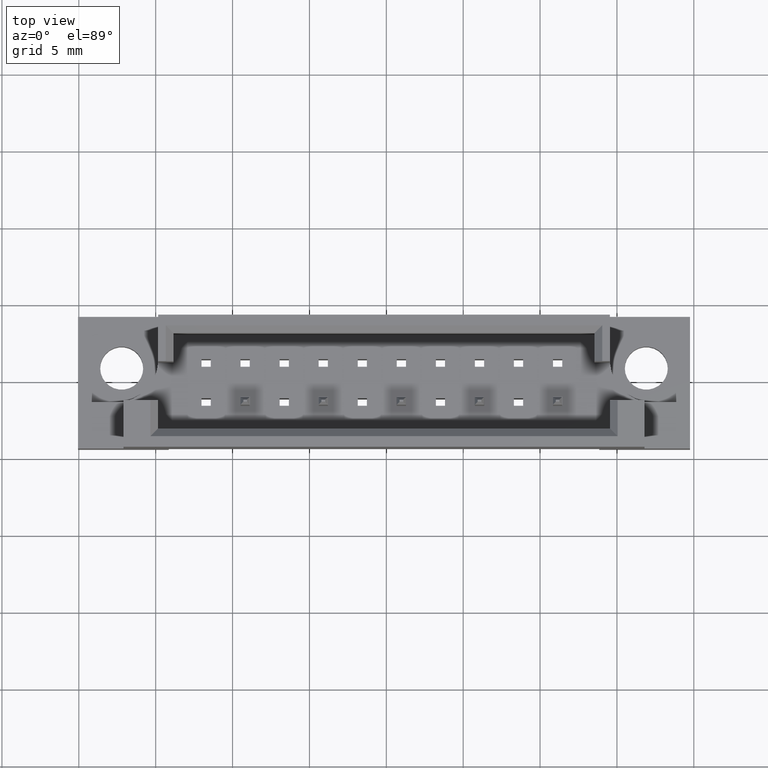
[diagram: clean part render]
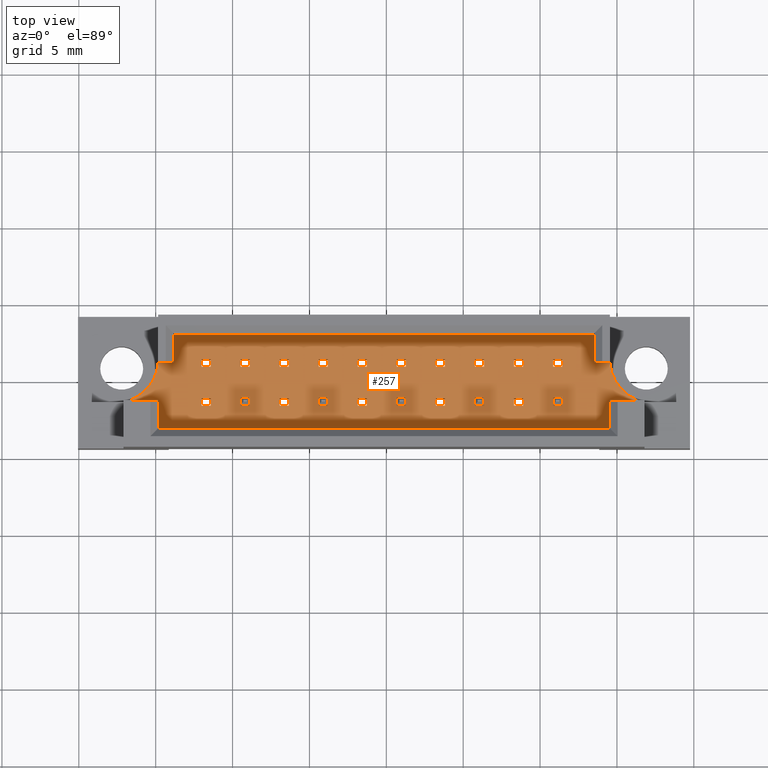
[diagram: same view with one face highlighted and labeled with its STEP entity id]
A machine part, top view. The second image highlights one B-rep face of the part: STEP entity #257.
In plain terms, the highlighted planar face has unit normal (0, 0, 1).
Its self-contained STEP definition (entity closure, byte-faithful):
#2 = CARTESIAN_POINT ( 'NONE',  ( 6.510000000000001563, 1.520000000000001794, 5.199999999999999289 ) ) ;
#3 = ORIENTED_EDGE ( 'NONE', *, *, #2495, .T. ) ;
#14 = VERTEX_POINT ( 'NONE', #395 ) ;
#21 = DIRECTION ( 'NONE',  ( -1.000000000000000000, -1.106434057711472506E-32, 0.0000000000000000000 ) ) ;
#27 = EDGE_CURVE ( 'NONE', #364, #4925, #1938, .T. ) ;
#31 = ORIENTED_EDGE ( 'NONE', *, *, #1352, .T. ) ;
#32 = ORIENTED_EDGE ( 'NONE', *, *, #3899, .T. ) ;
#36 = VERTEX_POINT ( 'NONE', #720 ) ;
#38 = VERTEX_POINT ( 'NONE', #690 ) ;
#42 = VERTEX_POINT ( 'NONE', #767 ) ;
#56 = CARTESIAN_POINT ( 'NONE',  ( -11.27000000000000135, -1.020000000000001128, 5.199999999999999289 ) ) ;
#63 = CARTESIAN_POINT ( 'NONE',  ( 3.970000000000001972, 1.520000000000001794, 5.199999999999999289 ) ) ;
#67 = EDGE_LOOP ( 'NONE', ( #130, #338, #3480, #1822 ) ) ;
#76 = VECTOR ( 'NONE', #3978, 1000.000000000000000 ) ;
#87 = CARTESIAN_POINT ( 'NONE',  ( -11.27000000000000135, 1.520000000000001794, 5.199999999999999289 ) ) ;
#88 = CARTESIAN_POINT ( 'NONE',  ( -11.87000000000000455, 1.520000000000001794, 5.199999999999999289 ) ) ;
#102 = LINE ( 'NONE', #1637, #4067 ) ;
#103 = EDGE_CURVE ( 'NONE', #771, #1003, #2709, .T. ) ;
#109 = CARTESIAN_POINT ( 'NONE',  ( 10.98999999999999844, -1.020000000000001128, 5.199999999999999289 ) ) ;
#110 = CARTESIAN_POINT ( 'NONE',  ( -13.68999999999999417, 1.270000000000029772, 5.199999999999999289 ) ) ;
#111 = ORIENTED_EDGE ( 'NONE', *, *, #885, .T. ) ;
#112 = EDGE_CURVE ( 'NONE', #711, #4656, #1880, .T. ) ;
#122 = CARTESIAN_POINT ( 'NONE',  ( -8.730000000000000426, -1.520000000000001350, 5.199999999999999289 ) ) ;
#128 = ORIENTED_EDGE ( 'NONE', *, *, #3584, .T. ) ;
#129 = EDGE_CURVE ( 'NONE', #2297, #4876, #3010, .T. ) ;
#130 = ORIENTED_EDGE ( 'NONE', *, *, #3915, .T. ) ;
#133 = CARTESIAN_POINT ( 'NONE',  ( -4.250000000000000888, 1.520000000000001794, 5.199999999999999289 ) ) ;
#140 = DIRECTION ( 'NONE',  ( -7.906912673692520484E-33, -1.000000000000000000, 0.0000000000000000000 ) ) ;
#148 = CARTESIAN_POINT ( 'NONE',  ( -11.87000000000000455, -1.520000000000000906, 5.199999999999999289 ) ) ;
#151 = EDGE_CURVE ( 'NONE', #1671, #810, #2469, .T. ) ;
#164 = CARTESIAN_POINT ( 'NONE',  ( -11.87000000000000455, 1.020000000000002016, 5.199999999999999289 ) ) ;
#168 = LINE ( 'NONE', #3944, #578 ) ;
#172 = DIRECTION ( 'NONE',  ( -7.906912673692520484E-33, -1.000000000000000000, 0.0000000000000000000 ) ) ;
#176 = CARTESIAN_POINT ( 'NONE',  ( 3.970000000000001972, 1.020000000000001572, 5.199999999999999289 ) ) ;
#198 = VECTOR ( 'NONE', #1576, 1000.000000000000000 ) ;
#216 = CARTESIAN_POINT ( 'NONE',  ( 6.510000000000001563, -1.520000000000001350, 5.199999999999999289 ) ) ;
#219 = CARTESIAN_POINT ( 'NONE',  ( 1.430000000000001270, 1.020000000000001572, 5.199999999999999289 ) ) ;
#222 = VECTOR ( 'NONE', #2277, 1000.000000000000000 ) ;
#225 = CARTESIAN_POINT ( 'NONE',  ( 17.48233981823222294, 1.476974248434020032, 5.200000000000000178 ) ) ;
#228 = DIRECTION ( 'NONE',  ( 1.000000000000000000, 0.0000000000000000000, -0.0000000000000000000 ) ) ;
#250 = CARTESIAN_POINT ( 'NONE',  ( -8.730000000000000426, -1.520000000000000906, 5.199999999999999289 ) ) ;
#251 = CARTESIAN_POINT ( 'NONE',  ( -9.330000000000003624, -1.520000000000000906, 5.199999999999999289 ) ) ;
#254 = CARTESIAN_POINT ( 'NONE',  ( 3.369999999999998774, -1.520000000000000906, 5.199999999999999289 ) ) ;
#257 = ADVANCED_FACE ( 'NONE', ( #622, #1789, #2970, #4499, #698, #4835, #1862, #4443, #1835, #1351, #2942, #2894, #981, #1055, #2917, #3663, #4466, #2576, #2196, #2597, #1810 ), #4120, .T. ) ;
#260 = LINE ( 'NONE', #1797, #2402 ) ;
#266 = EDGE_CURVE ( 'NONE', #2948, #4915, #3364, .T. ) ;
#271 = CARTESIAN_POINT ( 'NONE',  ( 0.8299999999999982947, 1.020000000000002016, 5.199999999999999289 ) ) ;
#280 = CARTESIAN_POINT ( 'NONE',  ( 6.510000000000001563, -1.020000000000001128, 5.199999999999999289 ) ) ;
#297 = CARTESIAN_POINT ( 'NONE',  ( 3.369999999999997886, 1.520000000000001794, 5.199999999999999289 ) ) ;
#300 = VECTOR ( 'NONE', #682, 1000.000000000000000 ) ;
#301 = VECTOR ( 'NONE', #770, 1000.000000000000000 ) ;
#310 = ORIENTED_EDGE ( 'NONE', *, *, #4763, .T. ) ;
#313 = CARTESIAN_POINT ( 'NONE',  ( -4.250000000000000000, 1.520000000000001794, 5.199999999999999289 ) ) ;
#333 = DIRECTION ( 'NONE',  ( -7.906912673692520484E-33, -1.000000000000000000, 0.0000000000000000000 ) ) ;
#337 = EDGE_CURVE ( 'NONE', #3862, #364, #3150, .T. ) ;
#338 = ORIENTED_EDGE ( 'NONE', *, *, #1739, .T. ) ;
#360 = VECTOR ( 'NONE', #4218, 1000.000000000000000 ) ;
#363 = LINE ( 'NONE', #2687, #301 ) ;
#364 = VERTEX_POINT ( 'NONE', #1226 ) ;
#368 = LINE ( 'NONE', #1227, #1679 ) ;
#371 = ORIENTED_EDGE ( 'NONE', *, *, #3675, .T. ) ;
#376 = DIRECTION ( 'NONE',  ( -1.000000000000000000, -1.106434057711472506E-32, 0.0000000000000000000 ) ) ;
#386 = VECTOR ( 'NONE', #2500, 1000.000000000000000 ) ;
#390 = CARTESIAN_POINT ( 'NONE',  ( 8.449999999999997513, -1.520000000000000906, 5.199999999999999289 ) ) ;
#392 = LINE ( 'NONE', #822, #4651 ) ;
#395 = CARTESIAN_POINT ( 'NONE',  ( 11.59000000000000163, -1.020000000000001128, 5.199999999999999289 ) ) ;
#399 = DIRECTION ( 'NONE',  ( 1.581382534738504097E-32, 1.000000000000000000, -0.0000000000000000000 ) ) ;
#407 = CARTESIAN_POINT ( 'NONE',  ( 5.909999999999998366, 1.020000000000002016, 5.199999999999999289 ) ) ;
#414 = ORIENTED_EDGE ( 'NONE', *, *, #4757, .T. ) ;
#422 = CARTESIAN_POINT ( 'NONE',  ( -14.68999999999999950, -1.270000000000031548, 5.199999999999999289 ) ) ;
#431 = DIRECTION ( 'NONE',  ( 7.906912673692520484E-33, 1.000000000000000000, -0.0000000000000000000 ) ) ;
#442 = EDGE_CURVE ( 'NONE', #994, #4185, #1735, .T. ) ;
#452 = VECTOR ( 'NONE', #1911, 1000.000000000000000 ) ;
#475 = CARTESIAN_POINT ( 'NONE',  ( -11.87000000000000455, 1.020000000000002016, 5.199999999999999289 ) ) ;
#485 = EDGE_CURVE ( 'NONE', #1058, #1671, #1246, .T. ) ;
#490 = EDGE_CURVE ( 'NONE', #1331, #2098, #4019, .T. ) ;
#493 = ORIENTED_EDGE ( 'NONE', *, *, #4689, .T. ) ;
#498 = CARTESIAN_POINT ( 'NONE',  ( -13.68999999999999417, 1.270000000000029772, 5.199999999999999289 ) ) ;
#513 = CARTESIAN_POINT ( 'NONE',  ( -16.94000000000001194, -1.270000000000031326, 5.199999999999998401 ) ) ;
#514 = CARTESIAN_POINT ( 'NONE',  ( -9.330000000000003624, 1.020000000000002016, 5.199999999999999289 ) ) ;
#519 = LINE ( 'NONE', #2036, #4354 ) ;
#522 = LINE ( 'NONE', #148, #3115 ) ;
#540 = VECTOR ( 'NONE', #376, 1000.000000000000000 ) ;
#541 = VECTOR ( 'NONE', #3242, 1000.000000000000000 ) ;
#546 = DIRECTION ( 'NONE',  ( -1.000000000000000000, -8.298255432836044823E-33, 0.0000000000000000000 ) ) ;
#552 = CARTESIAN_POINT ( 'NONE',  ( -8.730000000000000426, 1.020000000000001572, 5.199999999999999289 ) ) ;
#556 = VECTOR ( 'NONE', #4025, 1000.000000000000000 ) ;
#578 = VECTOR ( 'NONE', #2441, 1000.000000000000000 ) ;
#579 = VECTOR ( 'NONE', #611, 1000.000000000000000 ) ;
#583 = VERTEX_POINT ( 'NONE', #3170 ) ;
#590 = DIRECTION ( 'NONE',  ( 1.000000000000000000, 8.298255432836044823E-33, 0.0000000000000000000 ) ) ;
#594 = CARTESIAN_POINT ( 'NONE',  ( -9.330000000000003624, 1.020000000000002016, 5.199999999999999289 ) ) ;
#602 = LINE ( 'NONE', #3674, #2475 ) ;
#611 = DIRECTION ( 'NONE',  ( 1.000000000000000000, 9.637352644315549637E-17, 0.0000000000000000000 ) ) ;
#614 = VECTOR ( 'NONE', #3627, 1000.000000000000000 ) ;
#616 = VECTOR ( 'NONE', #2333, 1000.000000000000000 ) ;
#620 = DIRECTION ( 'NONE',  ( 1.000000000000000000, 8.298255432836044823E-33, 0.0000000000000000000 ) ) ;
#622 = FACE_OUTER_BOUND ( 'NONE', #3564, .T. ) ;
#628 = CARTESIAN_POINT ( 'NONE',  ( -3.649999999999997691, -1.520000000000000906, 5.199999999999999289 ) ) ;
#629 = VERTEX_POINT ( 'NONE', #552 ) ;
#635 = EDGE_CURVE ( 'NONE', #3297, #3213, #959, .T. ) ;
#640 = VERTEX_POINT ( 'NONE', #702 ) ;
#645 = CARTESIAN_POINT ( 'NONE',  ( -11.87000000000000455, -1.020000000000001128, 5.199999999999999289 ) ) ;
#646 = DIRECTION ( 'NONE',  ( 1.000000000000000000, 8.298255432836044823E-33, 0.0000000000000000000 ) ) ;
#668 = EDGE_CURVE ( 'NONE', #4937, #1331, #4471, .T. ) ;
#679 = EDGE_CURVE ( 'NONE', #3797, #2026, #4817, .T. ) ;
#682 = DIRECTION ( 'NONE',  ( -0.0000000000000000000, -1.000000000000000000, -0.0000000000000000000 ) ) ;
#690 = CARTESIAN_POINT ( 'NONE',  ( 3.970000000000001972, -1.020000000000001128, 5.199999999999999289 ) ) ;
#694 = CARTESIAN_POINT ( 'NONE',  ( 5.909999999999998366, 1.020000000000002016, 5.199999999999999289 ) ) ;
#695 = VECTOR ( 'NONE', #172, 1000.000000000000000 ) ;
#697 = LINE ( 'NONE', #2239, #1179 ) ;
#698 = FACE_BOUND ( 'NONE', #2440, .T. ) ;
#702 = CARTESIAN_POINT ( 'NONE',  ( -1.109999999999999876, -1.520000000000001350, 5.199999999999999289 ) ) ;
#711 = VERTEX_POINT ( 'NONE', #2920 ) ;
#716 = LINE ( 'NONE', #390, #949 ) ;
#720 = CARTESIAN_POINT ( 'NONE',  ( -11.87000000000000455, -1.520000000000000906, 5.199999999999999289 ) ) ;
#726 = VERTEX_POINT ( 'NONE', #3345 ) ;
#727 = LINE ( 'NONE', #772, #360 ) ;
#732 = CARTESIAN_POINT ( 'NONE',  ( 0.8299999999999982947, 1.520000000000001794, 5.199999999999999289 ) ) ;
#737 = EDGE_LOOP ( 'NONE', ( #3306, #4230, #3346, #3108 ) ) ;
#750 = CARTESIAN_POINT ( 'NONE',  ( -8.730000000000000426, 1.520000000000001794, 5.199999999999999289 ) ) ;
#753 = ORIENTED_EDGE ( 'NONE', *, *, #129, .T. ) ;
#755 = LINE ( 'NONE', #3817, #540 ) ;
#764 = VERTEX_POINT ( 'NONE', #4284 ) ;
#765 = CARTESIAN_POINT ( 'NONE',  ( -3.649999999999997691, 1.020000000000001572, 5.199999999999999289 ) ) ;
#767 = CARTESIAN_POINT ( 'NONE',  ( -11.87000000000000455, 1.520000000000001794, 5.199999999999999289 ) ) ;
#770 = DIRECTION ( 'NONE',  ( -1.000000000000000000, -8.298255432836044823E-33, 0.0000000000000000000 ) ) ;
#771 = VERTEX_POINT ( 'NONE', #4258 ) ;
#772 = CARTESIAN_POINT ( 'NONE',  ( 8.449999999999997513, 1.020000000000002016, 5.199999999999999289 ) ) ;
#774 = DIRECTION ( 'NONE',  ( 7.906912673692520484E-33, 1.000000000000000000, -0.0000000000000000000 ) ) ;
#777 = VERTEX_POINT ( 'NONE', #63 ) ;
#791 = VECTOR ( 'NONE', #3718, 1000.000000000000000 ) ;
#800 = CARTESIAN_POINT ( 'NONE',  ( -6.189999999999998614, 1.020000000000002016, 5.199999999999999289 ) ) ;
#801 = VECTOR ( 'NONE', #3287, 1000.000000000000000 ) ;
#805 = VECTOR ( 'NONE', #3589, 1000.000000000000000 ) ;
#810 = VERTEX_POINT ( 'NONE', #2303 ) ;
#812 = LINE ( 'NONE', #88, #2479 ) ;
#817 = EDGE_LOOP ( 'NONE', ( #2452, #4455, #1482, #4240 ) ) ;
#821 = CARTESIAN_POINT ( 'NONE',  ( -11.27000000000000135, 1.020000000000002016, 5.199999999999999289 ) ) ;
#822 = CARTESIAN_POINT ( 'NONE',  ( 10.98999999999999844, 1.020000000000002016, 5.199999999999999289 ) ) ;
#825 = EDGE_CURVE ( 'NONE', #2506, #14, #1211, .T. ) ;
#828 = LINE ( 'NONE', #1528, #2480 ) ;
#836 = LINE ( 'NONE', #1620, #864 ) ;
#837 = CARTESIAN_POINT ( 'NONE',  ( 10.98999999999999844, -1.020000000000001128, 5.199999999999999289 ) ) ;
#844 = VERTEX_POINT ( 'NONE', #1540 ) ;
#852 = LINE ( 'NONE', #4215, #1504 ) ;
#856 = CARTESIAN_POINT ( 'NONE',  ( 8.449999999999997513, -1.020000000000001128, 5.199999999999999289 ) ) ;
#863 = VERTEX_POINT ( 'NONE', #1278 ) ;
#864 = VECTOR ( 'NONE', #4305, 1000.000000000000000 ) ;
#866 = CARTESIAN_POINT ( 'NONE',  ( 9.050000000000000711, -1.520000000000000906, 5.199999999999999289 ) ) ;
#872 = VECTOR ( 'NONE', #1119, 1000.000000000000000 ) ;
#878 = CIRCLE ( 'NONE', #3686, 2.800000000000000266 ) ;
#882 = DIRECTION ( 'NONE',  ( -7.906912673692520484E-33, -1.000000000000000000, 0.0000000000000000000 ) ) ;
#885 = EDGE_CURVE ( 'NONE', #1107, #3553, #4422, .T. ) ;
#900 = ORIENTED_EDGE ( 'NONE', *, *, #668, .T. ) ;
#902 = DIRECTION ( 'NONE',  ( -7.906912673692520484E-33, -1.000000000000000000, 0.0000000000000000000 ) ) ;
#907 = CARTESIAN_POINT ( 'NONE',  ( -1.710000000000002407, 1.520000000000001794, 5.199999999999999289 ) ) ;
#912 = LINE ( 'NONE', #1303, #2242 ) ;
#932 = ORIENTED_EDGE ( 'NONE', *, *, #4521, .T. ) ;
#934 = DIRECTION ( 'NONE',  ( 1.000000000000000000, 8.298255432836044823E-33, 0.0000000000000000000 ) ) ;
#946 = VECTOR ( 'NONE', #4816, 1000.000000000000000 ) ;
#949 = VECTOR ( 'NONE', #1934, 1000.000000000000000 ) ;
#954 = CARTESIAN_POINT ( 'NONE',  ( 5.909999999999998366, -1.020000000000001128, 5.199999999999999289 ) ) ;
#959 = LINE ( 'NONE', #2502, #556 ) ;
#972 = LINE ( 'NONE', #3986, #2716 ) ;
#981 = FACE_BOUND ( 'NONE', #2925, .T. ) ;
#994 = VERTEX_POINT ( 'NONE', #4376 ) ;
#1002 = EDGE_CURVE ( 'NONE', #1545, #4314, #4771, .T. ) ;
#1003 = VERTEX_POINT ( 'NONE', #1325 ) ;
#1004 = CARTESIAN_POINT ( 'NONE',  ( -1.710000000000002407, -1.020000000000001128, 5.199999999999999289 ) ) ;
#1005 = VECTOR ( 'NONE', #2614, 1000.000000000000000 ) ;
#1009 = DIRECTION ( 'NONE',  ( -7.906912673692520484E-33, -1.000000000000000000, 0.0000000000000000000 ) ) ;
#1020 = EDGE_CURVE ( 'NONE', #4183, #771, #3231, .T. ) ;
#1021 = ORIENTED_EDGE ( 'NONE', *, *, #1932, .T. ) ;
#1025 = DIRECTION ( 'NONE',  ( 1.000000000000000000, 0.0000000000000000000, 0.0000000000000000000 ) ) ;
#1028 = VECTOR ( 'NONE', #1072, 1000.000000000000000 ) ;
#1029 = EDGE_CURVE ( 'NONE', #2219, #640, #912, .T. ) ;
#1043 = EDGE_CURVE ( 'NONE', #1111, #3629, #1281, .T. ) ;
#1048 = DIRECTION ( 'NONE',  ( 1.000000000000000000, 8.298255432836044823E-33, 0.0000000000000000000 ) ) ;
#1053 = EDGE_CURVE ( 'NONE', #1798, #1967, #716, .T. ) ;
#1055 = FACE_BOUND ( 'NONE', #3424, .T. ) ;
#1058 = VERTEX_POINT ( 'NONE', #3060 ) ;
#1061 = CARTESIAN_POINT ( 'NONE',  ( -14.68999999999999950, -3.100000000000135536, 5.199999999999999289 ) ) ;
#1070 = CARTESIAN_POINT ( 'NONE',  ( 11.59000000000000163, 1.020000000000001572, 5.199999999999999289 ) ) ;
#1072 = DIRECTION ( 'NONE',  ( 1.581382534738504097E-32, 1.000000000000000000, -0.0000000000000000000 ) ) ;
#1073 = LINE ( 'NONE', #3013, #4079 ) ;
#1088 = EDGE_CURVE ( 'NONE', #4264, #3113, #2343, .T. ) ;
#1097 = DIRECTION ( 'NONE',  ( -1.000000000000000000, -1.106434057711472506E-32, 0.0000000000000000000 ) ) ;
#1107 = VERTEX_POINT ( 'NONE', #3538 ) ;
#1111 = VERTEX_POINT ( 'NONE', #3863 ) ;
#1119 = DIRECTION ( 'NONE',  ( -1.000000000000000000, -8.298255432836044823E-33, 0.0000000000000000000 ) ) ;
#1132 = VERTEX_POINT ( 'NONE', #1959 ) ;
#1135 = ORIENTED_EDGE ( 'NONE', *, *, #2403, .T. ) ;
#1145 = VERTEX_POINT ( 'NONE', #513 ) ;
#1146 = EDGE_CURVE ( 'NONE', #1967, #2877, #1218, .T. ) ;
#1178 = CARTESIAN_POINT ( 'NONE',  ( 8.449999999999997513, 1.020000000000002016, 5.199999999999999289 ) ) ;
#1179 = VECTOR ( 'NONE', #646, 1000.000000000000000 ) ;
#1180 = ORIENTED_EDGE ( 'NONE', *, *, #2462, .T. ) ;
#1183 = EDGE_CURVE ( 'NONE', #2372, #1798, #3110, .T. ) ;
#1184 = ORIENTED_EDGE ( 'NONE', *, *, #103, .T. ) ;
#1199 = DIRECTION ( 'NONE',  ( -1.000000000000000000, -8.298255432836044823E-33, 0.0000000000000000000 ) ) ;
#1211 = LINE ( 'NONE', #837, #2578 ) ;
#1217 = ORIENTED_EDGE ( 'NONE', *, *, #2965, .T. ) ;
#1218 = LINE ( 'NONE', #2777, #198 ) ;
#1226 = CARTESIAN_POINT ( 'NONE',  ( -4.250000000000001776, 1.020000000000002016, 5.199999999999999289 ) ) ;
#1227 = CARTESIAN_POINT ( 'NONE',  ( -9.330000000000003624, -1.020000000000001128, 5.199999999999999289 ) ) ;
#1244 = VERTEX_POINT ( 'NONE', #594 ) ;
#1246 = LINE ( 'NONE', #3262, #3689 ) ;
#1250 = CARTESIAN_POINT ( 'NONE',  ( 10.98999999999999844, 1.020000000000002016, 5.199999999999999289 ) ) ;
#1278 = CARTESIAN_POINT ( 'NONE',  ( -6.790000000000002700, 1.020000000000002016, 5.199999999999999289 ) ) ;
#1281 = LINE ( 'NONE', #2825, #76 ) ;
#1282 = DIRECTION ( 'NONE',  ( 1.000000000000000000, 8.298255432836044823E-33, 0.0000000000000000000 ) ) ;
#1303 = CARTESIAN_POINT ( 'NONE',  ( -1.109999999999999210, -1.520000000000000906, 5.199999999999999289 ) ) ;
#1308 = VECTOR ( 'NONE', #4633, 1000.000000000000000 ) ;
#1310 = VECTOR ( 'NONE', #3328, 1000.000000000000000 ) ;
#1312 = VERTEX_POINT ( 'NONE', #2245 ) ;
#1313 = DIRECTION ( 'NONE',  ( 1.000000000000000000, 8.298255432836044823E-33, 0.0000000000000000000 ) ) ;
#1315 = CARTESIAN_POINT ( 'NONE',  ( 10.98999999999999844, -1.520000000000000906, 5.199999999999999289 ) ) ;
#1325 = CARTESIAN_POINT ( 'NONE',  ( -6.189999999999998614, 1.020000000000001572, 5.199999999999999289 ) ) ;
#1326 = VECTOR ( 'NONE', #590, 1000.000000000000000 ) ;
#1331 = VERTEX_POINT ( 'NONE', #4910 ) ;
#1351 = FACE_BOUND ( 'NONE', #1902, .T. ) ;
#1352 = EDGE_CURVE ( 'NONE', #3629, #2465, #3014, .T. ) ;
#1358 = EDGE_CURVE ( 'NONE', #4314, #2119, #1801, .T. ) ;
#1376 = LINE ( 'NONE', #907, #4316 ) ;
#1382 = ORIENTED_EDGE ( 'NONE', *, *, #4741, .T. ) ;
#1385 = VERTEX_POINT ( 'NONE', #216 ) ;
#1404 = ORIENTED_EDGE ( 'NONE', *, *, #2108, .T. ) ;
#1420 = VECTOR ( 'NONE', #431, 1000.000000000000000 ) ;
#1424 = LINE ( 'NONE', #271, #2958 ) ;
#1435 = EDGE_CURVE ( 'NONE', #38, #4937, #3035, .T. ) ;
#1436 = VECTOR ( 'NONE', #4647, 1000.000000000000000 ) ;
#1446 = CARTESIAN_POINT ( 'NONE',  ( -6.790000000000001812, -1.020000000000001128, 5.199999999999999289 ) ) ;
#1462 = VERTEX_POINT ( 'NONE', #3112 ) ;
#1463 = ORIENTED_EDGE ( 'NONE', *, *, #2664, .T. ) ;
#1476 = EDGE_LOOP ( 'NONE', ( #310, #4131, #31, #2437 ) ) ;
#1482 = ORIENTED_EDGE ( 'NONE', *, *, #4037, .T. ) ;
#1492 = CARTESIAN_POINT ( 'NONE',  ( -9.330000000000003624, -1.520000000000000906, 5.199999999999999289 ) ) ;
#1504 = VECTOR ( 'NONE', #399, 1000.000000000000000 ) ;
#1517 = VERTEX_POINT ( 'NONE', #4646 ) ;
#1524 = EDGE_CURVE ( 'NONE', #2465, #2975, #727, .T. ) ;
#1528 = CARTESIAN_POINT ( 'NONE',  ( 8.449999999999997513, 1.520000000000001794, 5.199999999999999289 ) ) ;
#1534 = CARTESIAN_POINT ( 'NONE',  ( -13.68999999999999417, 1.270000000000029772, 5.199999999999999289 ) ) ;
#1538 = ORIENTED_EDGE ( 'NONE', *, *, #4532, .T. ) ;
#1540 = CARTESIAN_POINT ( 'NONE',  ( 14.68999999999999950, -1.270000000000031548, 5.199999999999999289 ) ) ;
#1545 = VERTEX_POINT ( 'NONE', #1558 ) ;
#1550 = CARTESIAN_POINT ( 'NONE',  ( -3.649999999999997691, -1.020000000000001128, 5.199999999999999289 ) ) ;
#1554 = EDGE_CURVE ( 'NONE', #1145, #3320, #3876, .T. ) ;
#1558 = CARTESIAN_POINT ( 'NONE',  ( 5.909999999999998366, 1.520000000000001794, 5.199999999999999289 ) ) ;
#1564 = EDGE_LOOP ( 'NONE', ( #4013, #4288, #3105, #4362 ) ) ;
#1574 = EDGE_LOOP ( 'NONE', ( #2683, #1184, #2337, #1404 ) ) ;
#1576 = DIRECTION ( 'NONE',  ( 7.906912673692520484E-33, 1.000000000000000000, -0.0000000000000000000 ) ) ;
#1589 = CARTESIAN_POINT ( 'NONE',  ( 10.98999999999999844, -1.020000000000001128, 5.199999999999999289 ) ) ;
#1606 = ORIENTED_EDGE ( 'NONE', *, *, #3662, .T. ) ;
#1620 = CARTESIAN_POINT ( 'NONE',  ( -6.790000000000001812, -1.020000000000001128, 5.199999999999999289 ) ) ;
#1636 = VECTOR ( 'NONE', #1048, 1000.000000000000000 ) ;
#1637 = CARTESIAN_POINT ( 'NONE',  ( 10.98999999999999844, 1.520000000000001794, 5.199999999999999289 ) ) ;
#1642 = LINE ( 'NONE', #1250, #616 ) ;
#1649 = VERTEX_POINT ( 'NONE', #3240 ) ;
#1671 = VERTEX_POINT ( 'NONE', #2766 ) ;
#1679 = VECTOR ( 'NONE', #4219, 1000.000000000000000 ) ;
#1685 = EDGE_CURVE ( 'NONE', #2899, #3506, #3988, .T. ) ;
#1687 = VERTEX_POINT ( 'NONE', #4301 ) ;
#1700 = VERTEX_POINT ( 'NONE', #122 ) ;
#1703 = DIRECTION ( 'NONE',  ( 1.581382534738504097E-32, 1.000000000000000000, -0.0000000000000000000 ) ) ;
#1720 = DIRECTION ( 'NONE',  ( -0.0000000000000000000, -1.000000000000000000, -0.0000000000000000000 ) ) ;
#1722 = EDGE_CURVE ( 'NONE', #3506, #36, #522, .T. ) ;
#1724 = DIRECTION ( 'NONE',  ( 1.581382534738504097E-32, 1.000000000000000000, -0.0000000000000000000 ) ) ;
#1725 = DIRECTION ( 'NONE',  ( -7.906912673692520484E-33, -1.000000000000000000, 0.0000000000000000000 ) ) ;
#1726 = DIRECTION ( 'NONE',  ( 1.581382534738504097E-32, 1.000000000000000000, -0.0000000000000000000 ) ) ;
#1728 = ORIENTED_EDGE ( 'NONE', *, *, #490, .T. ) ;
#1735 = LINE ( 'NONE', #954, #2417 ) ;
#1737 = DIRECTION ( 'NONE',  ( -7.906912673692520484E-33, -1.000000000000000000, 0.0000000000000000000 ) ) ;
#1738 = EDGE_CURVE ( 'NONE', #14, #1312, #3189, .T. ) ;
#1739 = EDGE_CURVE ( 'NONE', #2984, #629, #3924, .T. ) ;
#1745 = EDGE_CURVE ( 'NONE', #1132, #2948, #102, .T. ) ;
#1760 = ORIENTED_EDGE ( 'NONE', *, *, #1088, .T. ) ;
#1764 = AXIS2_PLACEMENT_3D ( 'NONE', #2217, #3369, #228 ) ;
#1774 = CARTESIAN_POINT ( 'NONE',  ( -6.790000000000000924, 1.520000000000001794, 5.199999999999999289 ) ) ;
#1782 = LINE ( 'NONE', #4901, #1636 ) ;
#1788 = DIRECTION ( 'NONE',  ( -7.906912673692520484E-33, -1.000000000000000000, 0.0000000000000000000 ) ) ;
#1789 = FACE_BOUND ( 'NONE', #2959, .T. ) ;
#1791 = DIRECTION ( 'NONE',  ( -1.000000000000000000, -8.298255432836044823E-33, 0.0000000000000000000 ) ) ;
#1794 = EDGE_CURVE ( 'NONE', #3508, #3862, #4138, .T. ) ;
#1797 = CARTESIAN_POINT ( 'NONE',  ( -11.87000000000000455, 1.020000000000002016, 5.199999999999999289 ) ) ;
#1798 = VERTEX_POINT ( 'NONE', #3314 ) ;
#1801 = LINE ( 'NONE', #3651, #4300 ) ;
#1809 = CARTESIAN_POINT ( 'NONE',  ( 8.449999999999997513, -1.020000000000001128, 5.199999999999999289 ) ) ;
#1810 = FACE_BOUND ( 'NONE', #2298, .T. ) ;
#1812 = CARTESIAN_POINT ( 'NONE',  ( 3.369999999999998774, 1.020000000000002016, 5.199999999999999289 ) ) ;
#1822 = ORIENTED_EDGE ( 'NONE', *, *, #3984, .T. ) ;
#1826 = VECTOR ( 'NONE', #1940, 1000.000000000000000 ) ;
#1827 = VECTOR ( 'NONE', #3539, 1000.000000000000000 ) ;
#1835 = FACE_BOUND ( 'NONE', #817, .T. ) ;
#1836 = VECTOR ( 'NONE', #934, 1000.000000000000000 ) ;
#1841 = DIRECTION ( 'NONE',  ( 1.581382534738504097E-32, 1.000000000000000000, -0.0000000000000000000 ) ) ;
#1844 = ORIENTED_EDGE ( 'NONE', *, *, #3163, .T. ) ;
#1858 = CARTESIAN_POINT ( 'NONE',  ( -1.710000000000002629, -1.020000000000001128, 5.199999999999999289 ) ) ;
#1862 = FACE_BOUND ( 'NONE', #737, .T. ) ;
#1873 = EDGE_CURVE ( 'NONE', #3201, #2899, #4041, .T. ) ;
#1880 = LINE ( 'NONE', #4561, #2969 ) ;
#1885 = ORIENTED_EDGE ( 'NONE', *, *, #4195, .T. ) ;
#1892 = VERTEX_POINT ( 'NONE', #1858 ) ;
#1902 = EDGE_LOOP ( 'NONE', ( #4448, #4889, #4577, #493 ) ) ;
#1911 = DIRECTION ( 'NONE',  ( 1.000000000000000000, -9.637352644315549637E-17, -0.0000000000000000000 ) ) ;
#1913 = LINE ( 'NONE', #2398, #4319 ) ;
#1914 = LINE ( 'NONE', #1589, #3190 ) ;
#1916 = VECTOR ( 'NONE', #1791, 1000.000000000000000 ) ;
#1930 = VECTOR ( 'NONE', #333, 1000.000000000000000 ) ;
#1932 = EDGE_CURVE ( 'NONE', #1649, #3327, #2571, .T. ) ;
#1934 = DIRECTION ( 'NONE',  ( -1.000000000000000000, -8.298255432836044823E-33, 0.0000000000000000000 ) ) ;
#1938 = LINE ( 'NONE', #2263, #3135 ) ;
#1940 = DIRECTION ( 'NONE',  ( -1.000000000000000000, 0.0000000000000000000, 0.0000000000000000000 ) ) ;
#1950 = DIRECTION ( 'NONE',  ( 1.000000000000000000, 8.298255432836044823E-33, 0.0000000000000000000 ) ) ;
#1952 = ORIENTED_EDGE ( 'NONE', *, *, #4031, .T. ) ;
#1959 = CARTESIAN_POINT ( 'NONE',  ( 10.99000000000000021, 1.520000000000001794, 5.199999999999999289 ) ) ;
#1960 = CARTESIAN_POINT ( 'NONE',  ( -1.710000000000003073, 1.520000000000001794, 5.199999999999999289 ) ) ;
#1961 = ORIENTED_EDGE ( 'NONE', *, *, #2551, .T. ) ;
#1966 = EDGE_CURVE ( 'NONE', #4405, #3080, #3411, .T. ) ;
#1967 = VERTEX_POINT ( 'NONE', #4564 ) ;
#1991 = DIRECTION ( 'NONE',  ( 1.000000000000000000, 8.298255432836044823E-33, 0.0000000000000000000 ) ) ;
#1996 = CARTESIAN_POINT ( 'NONE',  ( 16.94000000000001194, -1.270000000000035323, 5.199999999999998401 ) ) ;
#2002 = VECTOR ( 'NONE', #1737, 1000.000000000000000 ) ;
#2008 = LINE ( 'NONE', #133, #614 ) ;
#2026 = VERTEX_POINT ( 'NONE', #4165 ) ;
#2029 = ORIENTED_EDGE ( 'NONE', *, *, #1435, .T. ) ;
#2036 = CARTESIAN_POINT ( 'NONE',  ( 3.970000000000001972, 1.020000000000002016, 5.199999999999999289 ) ) ;
#2049 = CARTESIAN_POINT ( 'NONE',  ( 5.909999999999998366, 1.520000000000001794, 5.199999999999999289 ) ) ;
#2050 = EDGE_CURVE ( 'NONE', #3327, #1107, #3116, .T. ) ;
#2054 = EDGE_CURVE ( 'NONE', #1003, #863, #2314, .T. ) ;
#2056 = CARTESIAN_POINT ( 'NONE',  ( -1.710000000000002629, -1.520000000000000906, 5.199999999999999289 ) ) ;
#2064 = LINE ( 'NONE', #3266, #2319 ) ;
#2072 = ORIENTED_EDGE ( 'NONE', *, *, #1029, .T. ) ;
#2075 = CARTESIAN_POINT ( 'NONE',  ( -9.330000000000003624, 1.520000000000001794, 5.199999999999999289 ) ) ;
#2087 = CARTESIAN_POINT ( 'NONE',  ( -8.730000000000000426, 1.020000000000002016, 5.199999999999999289 ) ) ;
#2096 = CARTESIAN_POINT ( 'NONE',  ( 13.68999999999999417, 1.270000000000029772, 5.199999999999999289 ) ) ;
#2098 = VERTEX_POINT ( 'NONE', #2481 ) ;
#2102 = DIRECTION ( 'NONE',  ( 1.000000000000000000, 8.298255432836044823E-33, 0.0000000000000000000 ) ) ;
#2108 = EDGE_CURVE ( 'NONE', #863, #4183, #602, .T. ) ;
#2117 = LINE ( 'NONE', #2501, #2002 ) ;
#2119 = VERTEX_POINT ( 'NONE', #3601 ) ;
#2126 = ORIENTED_EDGE ( 'NONE', *, *, #825, .T. ) ;
#2138 = CARTESIAN_POINT ( 'NONE',  ( -1.710000000000002407, -1.520000000000000906, 5.199999999999999289 ) ) ;
#2158 = EDGE_LOOP ( 'NONE', ( #2930, #4500, #3749, #2072 ) ) ;
#2181 = DIRECTION ( 'NONE',  ( 7.906912673692520484E-33, 1.000000000000000000, -0.0000000000000000000 ) ) ;
#2183 = ORIENTED_EDGE ( 'NONE', *, *, #3404, .T. ) ;
#2195 = CARTESIAN_POINT ( 'NONE',  ( -9.330000000000003624, -1.020000000000001128, 5.199999999999999289 ) ) ;
#2196 = FACE_BOUND ( 'NONE', #3643, .T. ) ;
#2197 = ORIENTED_EDGE ( 'NONE', *, *, #1358, .T. ) ;
#2217 = CARTESIAN_POINT ( 'NONE',  ( -19.90000000000000213, 4.299999999999996270, 5.199999999999999289 ) ) ;
#2219 = VERTEX_POINT ( 'NONE', #2455 ) ;
#2228 = EDGE_LOOP ( 'NONE', ( #3128, #2197, #2605, #1844 ) ) ;
#2237 = CARTESIAN_POINT ( 'NONE',  ( 3.970000000000001972, -1.520000000000000906, 5.199999999999999289 ) ) ;
#2238 = LINE ( 'NONE', #694, #1028 ) ;
#2239 = CARTESIAN_POINT ( 'NONE',  ( 3.369999999999998774, 1.520000000000001794, 5.199999999999999289 ) ) ;
#2242 = VECTOR ( 'NONE', #1725, 1000.000000000000000 ) ;
#2245 = CARTESIAN_POINT ( 'NONE',  ( 11.59000000000000341, -1.520000000000001350, 5.199999999999999289 ) ) ;
#2251 = EDGE_LOOP ( 'NONE', ( #1952, #3352, #3823, #4600 ) ) ;
#2263 = CARTESIAN_POINT ( 'NONE',  ( -4.250000000000000888, 1.020000000000002016, 5.199999999999999289 ) ) ;
#2264 = EDGE_CURVE ( 'NONE', #3002, #3471, #3722, .T. ) ;
#2266 = CARTESIAN_POINT ( 'NONE',  ( 13.68999999999999417, 3.100000000000133760, 5.199999999999999289 ) ) ;
#2277 = DIRECTION ( 'NONE',  ( 1.000000000000000000, 8.298255432836044823E-33, 0.0000000000000000000 ) ) ;
#2291 = LINE ( 'NONE', #3685, #4637 ) ;
#2294 = CARTESIAN_POINT ( 'NONE',  ( -14.68999999999999950, -1.270000000000031548, 5.199999999999999289 ) ) ;
#2297 = VERTEX_POINT ( 'NONE', #4545 ) ;
#2298 = EDGE_LOOP ( 'NONE', ( #4094, #3828, #2126, #4556 ) ) ;
#2303 = CARTESIAN_POINT ( 'NONE',  ( -1.710000000000003073, 1.020000000000002016, 5.199999999999999289 ) ) ;
#2311 = EDGE_CURVE ( 'NONE', #4876, #764, #3049, .T. ) ;
#2314 = LINE ( 'NONE', #2744, #4629 ) ;
#2319 = VECTOR ( 'NONE', #3972, 1000.000000000000000 ) ;
#2333 = DIRECTION ( 'NONE',  ( -1.000000000000000000, -1.106434057711472506E-32, 0.0000000000000000000 ) ) ;
#2335 = DIRECTION ( 'NONE',  ( 1.000000000000000000, 8.298255432836044823E-33, 0.0000000000000000000 ) ) ;
#2337 = ORIENTED_EDGE ( 'NONE', *, *, #2054, .T. ) ;
#2343 = LINE ( 'NONE', #821, #4953 ) ;
#2346 = DIRECTION ( 'NONE',  ( 1.581382534738504097E-32, 1.000000000000000000, -0.0000000000000000000 ) ) ;
#2348 = ORIENTED_EDGE ( 'NONE', *, *, #1685, .T. ) ;
#2350 = CARTESIAN_POINT ( 'NONE',  ( 3.369999999999998774, 1.020000000000002016, 5.199999999999999289 ) ) ;
#2370 = DIRECTION ( 'NONE',  ( 1.000000000000000000, 0.0000000000000000000, 0.0000000000000000000 ) ) ;
#2372 = VERTEX_POINT ( 'NONE', #2979 ) ;
#2373 = EDGE_CURVE ( 'NONE', #3320, #3397, #4506, .T. ) ;
#2392 = DIRECTION ( 'NONE',  ( 1.581382534738504097E-32, 1.000000000000000000, -0.0000000000000000000 ) ) ;
#2398 = CARTESIAN_POINT ( 'NONE',  ( -1.710000000000002629, -1.020000000000001128, 5.199999999999999289 ) ) ;
#2402 = VECTOR ( 'NONE', #1726, 1000.000000000000000 ) ;
#2403 = EDGE_CURVE ( 'NONE', #4452, #994, #4282, .T. ) ;
#2405 = CIRCLE ( 'NONE', #2885, 2.800000000000000266 ) ;
#2408 = ORIENTED_EDGE ( 'NONE', *, *, #2311, .T. ) ;
#2415 = LINE ( 'NONE', #514, #3518 ) ;
#2417 = VECTOR ( 'NONE', #3545, 1000.000000000000000 ) ;
#2424 = EDGE_CURVE ( 'NONE', #2119, #1687, #2794, .T. ) ;
#2434 = EDGE_CURVE ( 'NONE', #3213, #4265, #836, .T. ) ;
#2437 = ORIENTED_EDGE ( 'NONE', *, *, #1524, .T. ) ;
#2440 = EDGE_LOOP ( 'NONE', ( #2183, #1217, #371, #4678 ) ) ;
#2441 = DIRECTION ( 'NONE',  ( -1.000000000000000000, -8.298255432836044823E-33, 0.0000000000000000000 ) ) ;
#2452 = ORIENTED_EDGE ( 'NONE', *, *, #4674, .T. ) ;
#2455 = CARTESIAN_POINT ( 'NONE',  ( -1.109999999999998987, -1.020000000000001128, 5.199999999999999289 ) ) ;
#2462 = EDGE_CURVE ( 'NONE', #4112, #844, #3154, .T. ) ;
#2463 = CARTESIAN_POINT ( 'NONE',  ( -3.649999999999997691, 1.520000000000001794, 5.199999999999999289 ) ) ;
#2465 = VERTEX_POINT ( 'NONE', #1178 ) ;
#2466 = CARTESIAN_POINT ( 'NONE',  ( -11.27000000000000135, -1.520000000000000906, 5.199999999999999289 ) ) ;
#2469 = LINE ( 'NONE', #4023, #2889 ) ;
#2475 = VECTOR ( 'NONE', #1724, 1000.000000000000000 ) ;
#2479 = VECTOR ( 'NONE', #1950, 1000.000000000000000 ) ;
#2480 = VECTOR ( 'NONE', #3470, 1000.000000000000000 ) ;
#2481 = CARTESIAN_POINT ( 'NONE',  ( 3.369999999999998774, -1.020000000000001128, 5.199999999999999289 ) ) ;
#2488 = VERTEX_POINT ( 'NONE', #2771 ) ;
#2495 = EDGE_CURVE ( 'NONE', #42, #4264, #812, .T. ) ;
#2500 = DIRECTION ( 'NONE',  ( -1.000000000000000000, -8.298255432836044823E-33, 0.0000000000000000000 ) ) ;
#2501 = CARTESIAN_POINT ( 'NONE',  ( -6.189999999999998614, -1.520000000000000906, 5.199999999999999289 ) ) ;
#2502 = CARTESIAN_POINT ( 'NONE',  ( -6.790000000000001812, -1.020000000000001128, 5.199999999999999289 ) ) ;
#2506 = VERTEX_POINT ( 'NONE', #109 ) ;
#2509 = ORIENTED_EDGE ( 'NONE', *, *, #1722, .T. ) ;
#2510 = EDGE_CURVE ( 'NONE', #4915, #2488, #1642, .T. ) ;
#2516 = EDGE_CURVE ( 'NONE', #629, #1244, #755, .T. ) ;
#2523 = DIRECTION ( 'NONE',  ( 1.000000000000000000, 8.298255432836044823E-33, 0.0000000000000000000 ) ) ;
#2537 = CARTESIAN_POINT ( 'NONE',  ( -11.87000000000000455, -1.020000000000001128, 5.199999999999999289 ) ) ;
#2546 = CARTESIAN_POINT ( 'NONE',  ( 1.430000000000001492, -1.020000000000001128, 5.199999999999999289 ) ) ;
#2551 = EDGE_CURVE ( 'NONE', #764, #4872, #2064, .T. ) ;
#2571 = LINE ( 'NONE', #4095, #2786 ) ;
#2576 = FACE_BOUND ( 'NONE', #1476, .T. ) ;
#2578 = VECTOR ( 'NONE', #2335, 1000.000000000000000 ) ;
#2579 = DIRECTION ( 'NONE',  ( 1.000000000000000000, 8.298255432836044823E-33, 0.0000000000000000000 ) ) ;
#2582 = EDGE_CURVE ( 'NONE', #3772, #1058, #1376, .T. ) ;
#2592 = CARTESIAN_POINT ( 'NONE',  ( 9.050000000000000711, 1.020000000000001572, 5.199999999999999289 ) ) ;
#2594 = CARTESIAN_POINT ( 'NONE',  ( -11.87000000000000455, -1.020000000000001128, 5.199999999999999289 ) ) ;
#2597 = FACE_BOUND ( 'NONE', #1564, .T. ) ;
#2602 = ORIENTED_EDGE ( 'NONE', *, *, #4329, .T. ) ;
#2605 = ORIENTED_EDGE ( 'NONE', *, *, #2424, .T. ) ;
#2611 = CARTESIAN_POINT ( 'NONE',  ( 3.970000000000001528, -1.520000000000001350, 5.199999999999999289 ) ) ;
#2614 = DIRECTION ( 'NONE',  ( -7.906912673692520484E-33, -1.000000000000000000, 0.0000000000000000000 ) ) ;
#2664 = EDGE_CURVE ( 'NONE', #1462, #1649, #3197, .T. ) ;
#2680 = EDGE_LOOP ( 'NONE', ( #900, #1728, #414, #2029 ) ) ;
#2683 = ORIENTED_EDGE ( 'NONE', *, *, #1020, .T. ) ;
#2687 = CARTESIAN_POINT ( 'NONE',  ( -4.250000000000000888, -1.520000000000000906, 5.199999999999999289 ) ) ;
#2703 = ORIENTED_EDGE ( 'NONE', *, *, #1873, .T. ) ;
#2708 = VERTEX_POINT ( 'NONE', #2546 ) ;
#2709 = LINE ( 'NONE', #800, #1930 ) ;
#2716 = VECTOR ( 'NONE', #4318, 1000.000000000000000 ) ;
#2726 = DIRECTION ( 'NONE',  ( -1.000000000000000000, -1.106434057711472506E-32, 0.0000000000000000000 ) ) ;
#2730 = EDGE_CURVE ( 'NONE', #3080, #2734, #4934, .T. ) ;
#2734 = VERTEX_POINT ( 'NONE', #297 ) ;
#2742 = ORIENTED_EDGE ( 'NONE', *, *, #3174, .F. ) ;
#2744 = CARTESIAN_POINT ( 'NONE',  ( -6.790000000000001812, 1.020000000000002016, 5.199999999999999289 ) ) ;
#2751 = CARTESIAN_POINT ( 'NONE',  ( 14.68999999999999950, -3.100000000000135536, 5.199999999999999289 ) ) ;
#2764 = EDGE_CURVE ( 'NONE', #1892, #2219, #4102, .T. ) ;
#2766 = CARTESIAN_POINT ( 'NONE',  ( -1.109999999999999210, 1.020000000000001572, 5.199999999999999289 ) ) ;
#2768 = CARTESIAN_POINT ( 'NONE',  ( 8.449999999999999289, 1.520000000000001794, 5.199999999999999289 ) ) ;
#2771 = CARTESIAN_POINT ( 'NONE',  ( 10.98999999999999844, 1.020000000000002016, 5.199999999999999289 ) ) ;
#2777 = CARTESIAN_POINT ( 'NONE',  ( 8.449999999999997513, -1.020000000000001128, 5.199999999999999289 ) ) ;
#2786 = VECTOR ( 'NONE', #3834, 1000.000000000000000 ) ;
#2791 = VECTOR ( 'NONE', #2181, 1000.000000000000000 ) ;
#2794 = LINE ( 'NONE', #407, #4474 ) ;
#2798 = VECTOR ( 'NONE', #1720, 1000.000000000000000 ) ;
#2825 = CARTESIAN_POINT ( 'NONE',  ( 9.050000000000000711, 1.020000000000002016, 5.199999999999999289 ) ) ;
#2837 = LINE ( 'NONE', #2138, #541 ) ;
#2845 = CARTESIAN_POINT ( 'NONE',  ( -6.790000000000001812, 1.520000000000001794, 5.199999999999999289 ) ) ;
#2847 = DIRECTION ( 'NONE',  ( 1.000000000000000000, 8.298255432836044823E-33, 0.0000000000000000000 ) ) ;
#2861 = VECTOR ( 'NONE', #902, 1000.000000000000000 ) ;
#2869 = VECTOR ( 'NONE', #2847, 1000.000000000000000 ) ;
#2877 = VERTEX_POINT ( 'NONE', #856 ) ;
#2879 = VECTOR ( 'NONE', #2102, 1000.000000000000000 ) ;
#2885 = AXIS2_PLACEMENT_3D ( 'NONE', #225, #3366, #1025 ) ;
#2889 = VECTOR ( 'NONE', #3992, 1000.000000000000000 ) ;
#2894 = FACE_BOUND ( 'NONE', #2921, .T. ) ;
#2898 = ORIENTED_EDGE ( 'NONE', *, *, #1966, .T. ) ;
#2899 = VERTEX_POINT ( 'NONE', #56 ) ;
#2917 = FACE_BOUND ( 'NONE', #2680, .T. ) ;
#2920 = CARTESIAN_POINT ( 'NONE',  ( 0.8299999999999981837, -1.520000000000000906, 5.199999999999999289 ) ) ;
#2921 = EDGE_LOOP ( 'NONE', ( #2408, #1961, #1538, #753 ) ) ;
#2925 = EDGE_LOOP ( 'NONE', ( #4795, #4143, #32, #932 ) ) ;
#2928 = DIRECTION ( 'NONE',  ( -7.906912673692520484E-33, -1.000000000000000000, 0.0000000000000000000 ) ) ;
#2930 = ORIENTED_EDGE ( 'NONE', *, *, #4428, .T. ) ;
#2942 = FACE_BOUND ( 'NONE', #2158, .T. ) ;
#2948 = VERTEX_POINT ( 'NONE', #3095 ) ;
#2950 = CARTESIAN_POINT ( 'NONE',  ( -4.250000000000000888, -1.020000000000001128, 5.199999999999999289 ) ) ;
#2952 = VECTOR ( 'NONE', #1282, 1000.000000000000000 ) ;
#2958 = VECTOR ( 'NONE', #1097, 1000.000000000000000 ) ;
#2959 = EDGE_LOOP ( 'NONE', ( #3, #1760, #4950, #1885 ) ) ;
#2965 = EDGE_CURVE ( 'NONE', #4595, #4599, #368, .T. ) ;
#2969 = VECTOR ( 'NONE', #4189, 1000.000000000000000 ) ;
#2970 = FACE_BOUND ( 'NONE', #3792, .T. ) ;
#2975 = VERTEX_POINT ( 'NONE', #2768 ) ;
#2977 = EDGE_CURVE ( 'NONE', #3458, #1892, #1913, .T. ) ;
#2979 = CARTESIAN_POINT ( 'NONE',  ( 9.050000000000000711, -1.020000000000001128, 5.199999999999999289 ) ) ;
#2984 = VERTEX_POINT ( 'NONE', #750 ) ;
#3002 = VERTEX_POINT ( 'NONE', #4592 ) ;
#3010 = LINE ( 'NONE', #4531, #4330 ) ;
#3013 = CARTESIAN_POINT ( 'NONE',  ( 1.430000000000001270, -1.520000000000000906, 5.199999999999999289 ) ) ;
#3014 = LINE ( 'NONE', #4170, #1310 ) ;
#3018 = EDGE_CURVE ( 'NONE', #583, #711, #4042, .T. ) ;
#3022 = VECTOR ( 'NONE', #3636, 1000.000000000000000 ) ;
#3026 = ORIENTED_EDGE ( 'NONE', *, *, #1053, .T. ) ;
#3033 = DIRECTION ( 'NONE',  ( -1.000000000000000000, -1.106434057711472506E-32, 0.0000000000000000000 ) ) ;
#3035 = LINE ( 'NONE', #2237, #1005 ) ;
#3036 = CARTESIAN_POINT ( 'NONE',  ( -14.68999999999999950, -3.100000000000135536, 5.199999999999999289 ) ) ;
#3048 = ORIENTED_EDGE ( 'NONE', *, *, #1146, .T. ) ;
#3049 = LINE ( 'NONE', #732, #222 ) ;
#3060 = CARTESIAN_POINT ( 'NONE',  ( -1.109999999999999210, 1.520000000000001794, 5.199999999999999289 ) ) ;
#3061 = CARTESIAN_POINT ( 'NONE',  ( -17.48233981823222294, 1.476974248434024251, 5.200000000000000178 ) ) ;
#3063 = DIRECTION ( 'NONE',  ( 1.581382534738504097E-32, 1.000000000000000000, -0.0000000000000000000 ) ) ;
#3073 = DIRECTION ( 'NONE',  ( -1.000000000000000000, 4.670409358399072282E-16, 0.0000000000000000000 ) ) ;
#3080 = VERTEX_POINT ( 'NONE', #3221 ) ;
#3095 = CARTESIAN_POINT ( 'NONE',  ( 11.59000000000000163, 1.520000000000001794, 5.199999999999999289 ) ) ;
#3096 = CARTESIAN_POINT ( 'NONE',  ( -6.189999999999998614, -1.020000000000001128, 5.199999999999999289 ) ) ;
#3105 = ORIENTED_EDGE ( 'NONE', *, *, #2510, .T. ) ;
#3108 = ORIENTED_EDGE ( 'NONE', *, *, #4445, .T. ) ;
#3110 = LINE ( 'NONE', #866, #1308 ) ;
#3112 = CARTESIAN_POINT ( 'NONE',  ( 14.68999999999999773, 1.270000000000026219, 5.200000000000000178 ) ) ;
#3113 = VERTEX_POINT ( 'NONE', #4761 ) ;
#3115 = VECTOR ( 'NONE', #546, 1000.000000000000000 ) ;
#3116 = LINE ( 'NONE', #3467, #1826 ) ;
#3121 = EDGE_CURVE ( 'NONE', #1312, #3720, #4738, .T. ) ;
#3128 = ORIENTED_EDGE ( 'NONE', *, *, #1002, .T. ) ;
#3133 = ORIENTED_EDGE ( 'NONE', *, *, #4566, .T. ) ;
#3135 = VECTOR ( 'NONE', #3063, 1000.000000000000000 ) ;
#3150 = LINE ( 'NONE', #4197, #1436 ) ;
#3154 = LINE ( 'NONE', #2751, #4782 ) ;
#3159 = DIRECTION ( 'NONE',  ( -1.000000000000000000, -1.106434057711472506E-32, 0.0000000000000000000 ) ) ;
#3163 = EDGE_CURVE ( 'NONE', #1687, #1545, #2238, .T. ) ;
#3164 = CARTESIAN_POINT ( 'NONE',  ( -4.250000000000000888, -1.020000000000001128, 5.199999999999999289 ) ) ;
#3170 = CARTESIAN_POINT ( 'NONE',  ( 1.430000000000000604, -1.520000000000001350, 5.199999999999999289 ) ) ;
#3174 = EDGE_CURVE ( 'NONE', #1462, #4233, #2405, .T. ) ;
#3177 = LINE ( 'NONE', #4666, #1827 ) ;
#3189 = LINE ( 'NONE', #3947, #2861 ) ;
#3190 = VECTOR ( 'NONE', #4617, 1000.000000000000000 ) ;
#3193 = EDGE_CURVE ( 'NONE', #1517, #1700, #3660, .T. ) ;
#3197 = LINE ( 'NONE', #2096, #946 ) ;
#3201 = VERTEX_POINT ( 'NONE', #645 ) ;
#3213 = VERTEX_POINT ( 'NONE', #1446 ) ;
#3221 = CARTESIAN_POINT ( 'NONE',  ( 3.369999999999997886, 1.020000000000002016, 5.199999999999999289 ) ) ;
#3231 = LINE ( 'NONE', #2845, #2879 ) ;
#3234 = VERTEX_POINT ( 'NONE', #4813 ) ;
#3240 = CARTESIAN_POINT ( 'NONE',  ( 13.68999999999999417, 1.270000000000029772, 5.199999999999999289 ) ) ;
#3242 = DIRECTION ( 'NONE',  ( -1.000000000000000000, -8.298255432836044823E-33, 0.0000000000000000000 ) ) ;
#3262 = CARTESIAN_POINT ( 'NONE',  ( -1.109999999999999210, 1.020000000000002016, 5.199999999999999289 ) ) ;
#3265 = CARTESIAN_POINT ( 'NONE',  ( 5.909999999999998366, -1.520000000000000906, 5.199999999999999289 ) ) ;
#3266 = CARTESIAN_POINT ( 'NONE',  ( 1.430000000000001270, 1.020000000000002016, 5.199999999999999289 ) ) ;
#3271 = VECTOR ( 'NONE', #4419, 1000.000000000000000 ) ;
#3274 = CARTESIAN_POINT ( 'NONE',  ( 6.510000000000001563, -1.520000000000000906, 5.199999999999999289 ) ) ;
#3287 = DIRECTION ( 'NONE',  ( -7.906912673692520484E-33, -1.000000000000000000, 0.0000000000000000000 ) ) ;
#3297 = VERTEX_POINT ( 'NONE', #3692 ) ;
#3306 = ORIENTED_EDGE ( 'NONE', *, *, #3514, .T. ) ;
#3314 = CARTESIAN_POINT ( 'NONE',  ( 9.050000000000002487, -1.520000000000001350, 5.199999999999999289 ) ) ;
#3320 = VERTEX_POINT ( 'NONE', #422 ) ;
#3327 = VERTEX_POINT ( 'NONE', #2266 ) ;
#3328 = DIRECTION ( 'NONE',  ( -1.000000000000000000, -1.106434057711472506E-32, 0.0000000000000000000 ) ) ;
#3345 = CARTESIAN_POINT ( 'NONE',  ( -9.330000000000003624, 1.520000000000001794, 5.199999999999999289 ) ) ;
#3346 = ORIENTED_EDGE ( 'NONE', *, *, #2434, .T. ) ;
#3352 = ORIENTED_EDGE ( 'NONE', *, *, #1794, .T. ) ;
#3364 = LINE ( 'NONE', #3711, #801 ) ;
#3366 = DIRECTION ( 'NONE',  ( 0.0000000000000000000, 0.0000000000000000000, 1.000000000000000000 ) ) ;
#3369 = DIRECTION ( 'NONE',  ( 0.0000000000000000000, 0.0000000000000000000, 1.000000000000000000 ) ) ;
#3383 = LINE ( 'NONE', #4491, #579 ) ;
#3387 = DIRECTION ( 'NONE',  ( -7.906912673692520484E-33, -1.000000000000000000, 0.0000000000000000000 ) ) ;
#3397 = VERTEX_POINT ( 'NONE', #3036 ) ;
#3404 = EDGE_CURVE ( 'NONE', #1700, #4595, #4090, .T. ) ;
#3411 = LINE ( 'NONE', #2350, #4467 ) ;
#3423 = ORIENTED_EDGE ( 'NONE', *, *, #2050, .T. ) ;
#3424 = EDGE_LOOP ( 'NONE', ( #3725, #128, #2898, #4482 ) ) ;
#3426 = ORIENTED_EDGE ( 'NONE', *, *, #4833, .T. ) ;
#3429 = VECTOR ( 'NONE', #1009, 1000.000000000000000 ) ;
#3443 = VECTOR ( 'NONE', #3387, 1000.000000000000000 ) ;
#3458 = VERTEX_POINT ( 'NONE', #2056 ) ;
#3467 = CARTESIAN_POINT ( 'NONE',  ( 13.68999999999999417, 3.100000000000133760, 5.199999999999999289 ) ) ;
#3470 = DIRECTION ( 'NONE',  ( 1.000000000000000000, 8.298255432836044823E-33, 0.0000000000000000000 ) ) ;
#3471 = VERTEX_POINT ( 'NONE', #3164 ) ;
#3480 = ORIENTED_EDGE ( 'NONE', *, *, #2516, .T. ) ;
#3506 = VERTEX_POINT ( 'NONE', #3582 ) ;
#3508 = VERTEX_POINT ( 'NONE', #2463 ) ;
#3514 = EDGE_CURVE ( 'NONE', #4132, #3297, #168, .T. ) ;
#3518 = VECTOR ( 'NONE', #1703, 1000.000000000000000 ) ;
#3538 = CARTESIAN_POINT ( 'NONE',  ( -13.68999999999999417, 3.100000000000133760, 5.199999999999999289 ) ) ;
#3539 = DIRECTION ( 'NONE',  ( 1.000000000000000000, 8.298255432836044823E-33, 0.0000000000000000000 ) ) ;
#3545 = DIRECTION ( 'NONE',  ( 1.000000000000000000, 8.298255432836044823E-33, 0.0000000000000000000 ) ) ;
#3553 = VERTEX_POINT ( 'NONE', #498 ) ;
#3563 = CARTESIAN_POINT ( 'NONE',  ( 0.8299999999999974065, 1.520000000000001794, 5.199999999999999289 ) ) ;
#3564 = EDGE_LOOP ( 'NONE', ( #2742, #1463, #1021, #3423, #111, #2602, #4900, #4550, #3847, #3426, #1180, #1606 ) ) ;
#3582 = CARTESIAN_POINT ( 'NONE',  ( -11.27000000000000135, -1.520000000000001350, 5.199999999999999289 ) ) ;
#3584 = EDGE_CURVE ( 'NONE', #777, #4405, #519, .T. ) ;
#3589 = DIRECTION ( 'NONE',  ( 7.906912673692520484E-33, 1.000000000000000000, -0.0000000000000000000 ) ) ;
#3601 = CARTESIAN_POINT ( 'NONE',  ( 6.510000000000001563, 1.020000000000001572, 5.199999999999999289 ) ) ;
#3627 = DIRECTION ( 'NONE',  ( 1.000000000000000000, 8.298255432836044823E-33, 0.0000000000000000000 ) ) ;
#3629 = VERTEX_POINT ( 'NONE', #2592 ) ;
#3636 = DIRECTION ( 'NONE',  ( -7.906912673692520484E-33, -1.000000000000000000, 0.0000000000000000000 ) ) ;
#3643 = EDGE_LOOP ( 'NONE', ( #3026, #3048, #3133, #4580 ) ) ;
#3645 = EDGE_CURVE ( 'NONE', #36, #3201, #3710, .T. ) ;
#3651 = CARTESIAN_POINT ( 'NONE',  ( 6.510000000000001563, 1.020000000000002016, 5.199999999999999289 ) ) ;
#3660 = LINE ( 'NONE', #250, #3443 ) ;
#3662 = EDGE_CURVE ( 'NONE', #844, #4233, #3383, .T. ) ;
#3663 = FACE_BOUND ( 'NONE', #2228, .T. ) ;
#3673 = VECTOR ( 'NONE', #620, 1000.000000000000000 ) ;
#3674 = CARTESIAN_POINT ( 'NONE',  ( -6.790000000000001812, 1.020000000000002016, 5.199999999999999289 ) ) ;
#3675 = EDGE_CURVE ( 'NONE', #4599, #1517, #1782, .T. ) ;
#3676 = CARTESIAN_POINT ( 'NONE',  ( -6.189999999999997726, -1.520000000000001350, 5.199999999999999289 ) ) ;
#3685 = CARTESIAN_POINT ( 'NONE',  ( 3.369999999999998774, -1.020000000000001128, 5.199999999999999289 ) ) ;
#3686 = AXIS2_PLACEMENT_3D ( 'NONE', #3061, #4210, #2370 ) ;
#3689 = VECTOR ( 'NONE', #882, 1000.000000000000000 ) ;
#3692 = CARTESIAN_POINT ( 'NONE',  ( -6.790000000000001812, -1.520000000000000906, 5.199999999999999289 ) ) ;
#3708 = ORIENTED_EDGE ( 'NONE', *, *, #3645, .T. ) ;
#3710 = LINE ( 'NONE', #2537, #4036 ) ;
#3711 = CARTESIAN_POINT ( 'NONE',  ( 11.59000000000000163, 1.020000000000002016, 5.199999999999999289 ) ) ;
#3713 = DIRECTION ( 'NONE',  ( -7.906912673692520484E-33, -1.000000000000000000, 0.0000000000000000000 ) ) ;
#3718 = DIRECTION ( 'NONE',  ( -7.906912673692520484E-33, -1.000000000000000000, 0.0000000000000000000 ) ) ;
#3720 = VERTEX_POINT ( 'NONE', #4134 ) ;
#3722 = LINE ( 'NONE', #2950, #2791 ) ;
#3725 = ORIENTED_EDGE ( 'NONE', *, *, #4593, .T. ) ;
#3749 = ORIENTED_EDGE ( 'NONE', *, *, #2764, .T. ) ;
#3763 = EDGE_CURVE ( 'NONE', #2488, #1132, #392, .T. ) ;
#3772 = VERTEX_POINT ( 'NONE', #1960 ) ;
#3792 = EDGE_LOOP ( 'NONE', ( #2509, #3708, #2703, #2348 ) ) ;
#3797 = VERTEX_POINT ( 'NONE', #1550 ) ;
#3813 = EDGE_CURVE ( 'NONE', #1145, #3234, #878, .T. ) ;
#3814 = LINE ( 'NONE', #1534, #3827 ) ;
#3817 = CARTESIAN_POINT ( 'NONE',  ( -9.330000000000003624, 1.020000000000002016, 5.199999999999999289 ) ) ;
#3823 = ORIENTED_EDGE ( 'NONE', *, *, #337, .T. ) ;
#3827 = VECTOR ( 'NONE', #3073, 1000.000000000000000 ) ;
#3828 = ORIENTED_EDGE ( 'NONE', *, *, #4229, .T. ) ;
#3831 = VECTOR ( 'NONE', #2579, 1000.000000000000000 ) ;
#3834 = DIRECTION ( 'NONE',  ( 0.0000000000000000000, 1.000000000000000000, 0.0000000000000000000 ) ) ;
#3847 = ORIENTED_EDGE ( 'NONE', *, *, #2373, .T. ) ;
#3862 = VERTEX_POINT ( 'NONE', #765 ) ;
#3863 = CARTESIAN_POINT ( 'NONE',  ( 9.050000000000000711, 1.520000000000001794, 5.199999999999999289 ) ) ;
#3876 = LINE ( 'NONE', #2294, #452 ) ;
#3881 = CARTESIAN_POINT ( 'NONE',  ( 5.909999999999998366, -1.020000000000001128, 5.199999999999999289 ) ) ;
#3899 = EDGE_CURVE ( 'NONE', #4656, #2708, #4727, .T. ) ;
#3908 = DIRECTION ( 'NONE',  ( -7.906912673692520484E-33, -1.000000000000000000, 0.0000000000000000000 ) ) ;
#3915 = EDGE_CURVE ( 'NONE', #726, #2984, #4752, .T. ) ;
#3924 = LINE ( 'NONE', #2087, #695 ) ;
#3941 = CARTESIAN_POINT ( 'NONE',  ( 0.8299999999999982947, -1.020000000000001128, 5.199999999999999289 ) ) ;
#3944 = CARTESIAN_POINT ( 'NONE',  ( -6.790000000000001812, -1.520000000000000906, 5.199999999999999289 ) ) ;
#3947 = CARTESIAN_POINT ( 'NONE',  ( 11.59000000000000163, -1.520000000000000906, 5.199999999999999289 ) ) ;
#3972 = DIRECTION ( 'NONE',  ( -7.906912673692520484E-33, -1.000000000000000000, 0.0000000000000000000 ) ) ;
#3978 = DIRECTION ( 'NONE',  ( -7.906912673692520484E-33, -1.000000000000000000, 0.0000000000000000000 ) ) ;
#3979 = EDGE_CURVE ( 'NONE', #3113, #4664, #4701, .T. ) ;
#3984 = EDGE_CURVE ( 'NONE', #1244, #726, #2415, .T. ) ;
#3986 = CARTESIAN_POINT ( 'NONE',  ( 14.68999999999999950, -3.100000000000135536, 5.199999999999999289 ) ) ;
#3988 = LINE ( 'NONE', #2466, #3022 ) ;
#3992 = DIRECTION ( 'NONE',  ( -1.000000000000000000, -1.106434057711472506E-32, 0.0000000000000000000 ) ) ;
#4013 = ORIENTED_EDGE ( 'NONE', *, *, #1745, .T. ) ;
#4019 = LINE ( 'NONE', #4302, #805 ) ;
#4023 = CARTESIAN_POINT ( 'NONE',  ( -1.710000000000002407, 1.020000000000002016, 5.199999999999999289 ) ) ;
#4025 = DIRECTION ( 'NONE',  ( 7.906912673692520484E-33, 1.000000000000000000, -0.0000000000000000000 ) ) ;
#4031 = EDGE_CURVE ( 'NONE', #4925, #3508, #2008, .T. ) ;
#4036 = VECTOR ( 'NONE', #4513, 1000.000000000000000 ) ;
#4037 = EDGE_CURVE ( 'NONE', #3471, #3797, #3177, .T. ) ;
#4041 = LINE ( 'NONE', #2594, #1326 ) ;
#4042 = LINE ( 'NONE', #4367, #3271 ) ;
#4067 = VECTOR ( 'NONE', #1313, 1000.000000000000000 ) ;
#4072 = EDGE_LOOP ( 'NONE', ( #1382, #1135, #4865, #4568 ) ) ;
#4079 = VECTOR ( 'NONE', #1788, 1000.000000000000000 ) ;
#4090 = LINE ( 'NONE', #1492, #872 ) ;
#4094 = ORIENTED_EDGE ( 'NONE', *, *, #3121, .T. ) ;
#4095 = CARTESIAN_POINT ( 'NONE',  ( 13.68999999999999417, 1.270000000000029772, 5.199999999999999289 ) ) ;
#4098 = LINE ( 'NONE', #1809, #3673 ) ;
#4102 = LINE ( 'NONE', #1004, #3831 ) ;
#4112 = VERTEX_POINT ( 'NONE', #4451 ) ;
#4120 = PLANE ( 'NONE',  #1764 ) ;
#4131 = ORIENTED_EDGE ( 'NONE', *, *, #1043, .T. ) ;
#4132 = VERTEX_POINT ( 'NONE', #3676 ) ;
#4133 = EDGE_CURVE ( 'NONE', #4185, #1385, #4871, .T. ) ;
#4134 = CARTESIAN_POINT ( 'NONE',  ( 10.98999999999999844, -1.520000000000000906, 5.199999999999999289 ) ) ;
#4138 = LINE ( 'NONE', #4812, #4313 ) ;
#4143 = ORIENTED_EDGE ( 'NONE', *, *, #112, .T. ) ;
#4165 = CARTESIAN_POINT ( 'NONE',  ( -3.649999999999996803, -1.520000000000001350, 5.199999999999999289 ) ) ;
#4170 = CARTESIAN_POINT ( 'NONE',  ( 8.449999999999997513, 1.020000000000002016, 5.199999999999999289 ) ) ;
#4183 = VERTEX_POINT ( 'NONE', #1774 ) ;
#4185 = VERTEX_POINT ( 'NONE', #280 ) ;
#4189 = DIRECTION ( 'NONE',  ( 7.906912673692520484E-33, 1.000000000000000000, -0.0000000000000000000 ) ) ;
#4195 = EDGE_CURVE ( 'NONE', #4664, #42, #260, .T. ) ;
#4197 = CARTESIAN_POINT ( 'NONE',  ( -4.250000000000000888, 1.020000000000002016, 5.199999999999999289 ) ) ;
#4210 = DIRECTION ( 'NONE',  ( 0.0000000000000000000, 0.0000000000000000000, 1.000000000000000000 ) ) ;
#4215 = CARTESIAN_POINT ( 'NONE',  ( -1.710000000000002629, 1.020000000000002016, 5.199999999999999289 ) ) ;
#4218 = DIRECTION ( 'NONE',  ( 1.581382534738504097E-32, 1.000000000000000000, -0.0000000000000000000 ) ) ;
#4219 = DIRECTION ( 'NONE',  ( 7.906912673692520484E-33, 1.000000000000000000, -0.0000000000000000000 ) ) ;
#4229 = EDGE_CURVE ( 'NONE', #3720, #2506, #1914, .T. ) ;
#4230 = ORIENTED_EDGE ( 'NONE', *, *, #635, .T. ) ;
#4233 = VERTEX_POINT ( 'NONE', #1996 ) ;
#4240 = ORIENTED_EDGE ( 'NONE', *, *, #679, .T. ) ;
#4247 = LINE ( 'NONE', #4643, #4320 ) ;
#4256 = DIRECTION ( 'NONE',  ( 0.0000000000000000000, 1.000000000000000000, 0.0000000000000000000 ) ) ;
#4258 = CARTESIAN_POINT ( 'NONE',  ( -6.189999999999998614, 1.520000000000001794, 5.199999999999999289 ) ) ;
#4264 = VERTEX_POINT ( 'NONE', #87 ) ;
#4265 = VERTEX_POINT ( 'NONE', #3096 ) ;
#4282 = LINE ( 'NONE', #3881, #1420 ) ;
#4284 = CARTESIAN_POINT ( 'NONE',  ( 1.430000000000001270, 1.520000000000001794, 5.199999999999999289 ) ) ;
#4288 = ORIENTED_EDGE ( 'NONE', *, *, #266, .T. ) ;
#4300 = VECTOR ( 'NONE', #2928, 1000.000000000000000 ) ;
#4301 = CARTESIAN_POINT ( 'NONE',  ( 5.909999999999997478, 1.020000000000002016, 5.199999999999999289 ) ) ;
#4302 = CARTESIAN_POINT ( 'NONE',  ( 3.369999999999998774, -1.020000000000001128, 5.199999999999999289 ) ) ;
#4305 = DIRECTION ( 'NONE',  ( 1.000000000000000000, 8.298255432836044823E-33, 0.0000000000000000000 ) ) ;
#4313 = VECTOR ( 'NONE', #3713, 1000.000000000000000 ) ;
#4314 = VERTEX_POINT ( 'NONE', #2 ) ;
#4316 = VECTOR ( 'NONE', #2523, 1000.000000000000000 ) ;
#4318 = DIRECTION ( 'NONE',  ( 1.000000000000000000, -0.0000000000000000000, -0.0000000000000000000 ) ) ;
#4319 = VECTOR ( 'NONE', #774, 1000.000000000000000 ) ;
#4320 = VECTOR ( 'NONE', #1199, 1000.000000000000000 ) ;
#4329 = EDGE_CURVE ( 'NONE', #3553, #3234, #3814, .T. ) ;
#4330 = VECTOR ( 'NONE', #2392, 1000.000000000000000 ) ;
#4354 = VECTOR ( 'NONE', #140, 1000.000000000000000 ) ;
#4362 = ORIENTED_EDGE ( 'NONE', *, *, #3763, .T. ) ;
#4367 = CARTESIAN_POINT ( 'NONE',  ( 0.8299999999999982947, -1.520000000000000906, 5.199999999999999289 ) ) ;
#4376 = CARTESIAN_POINT ( 'NONE',  ( 5.909999999999998366, -1.020000000000001128, 5.199999999999999289 ) ) ;
#4405 = VERTEX_POINT ( 'NONE', #176 ) ;
#4419 = DIRECTION ( 'NONE',  ( -1.000000000000000000, -8.298255432836044823E-33, 0.0000000000000000000 ) ) ;
#4422 = LINE ( 'NONE', #110, #2798 ) ;
#4428 = EDGE_CURVE ( 'NONE', #640, #3458, #2837, .T. ) ;
#4443 = FACE_BOUND ( 'NONE', #2251, .T. ) ;
#4445 = EDGE_CURVE ( 'NONE', #4265, #4132, #2117, .T. ) ;
#4448 = ORIENTED_EDGE ( 'NONE', *, *, #2582, .T. ) ;
#4451 = CARTESIAN_POINT ( 'NONE',  ( 14.68999999999999950, -3.100000000000135536, 5.199999999999999289 ) ) ;
#4452 = VERTEX_POINT ( 'NONE', #3265 ) ;
#4455 = ORIENTED_EDGE ( 'NONE', *, *, #2264, .T. ) ;
#4466 = FACE_BOUND ( 'NONE', #4072, .T. ) ;
#4467 = VECTOR ( 'NONE', #3033, 1000.000000000000000 ) ;
#4471 = LINE ( 'NONE', #254, #1916 ) ;
#4474 = VECTOR ( 'NONE', #2726, 1000.000000000000000 ) ;
#4482 = ORIENTED_EDGE ( 'NONE', *, *, #2730, .T. ) ;
#4491 = CARTESIAN_POINT ( 'NONE',  ( 14.68999999999999950, -1.270000000000031548, 5.199999999999999289 ) ) ;
#4499 = FACE_BOUND ( 'NONE', #67, .T. ) ;
#4500 = ORIENTED_EDGE ( 'NONE', *, *, #2977, .T. ) ;
#4506 = LINE ( 'NONE', #1061, #300 ) ;
#4513 = DIRECTION ( 'NONE',  ( 7.906912673692520484E-33, 1.000000000000000000, -0.0000000000000000000 ) ) ;
#4521 = EDGE_CURVE ( 'NONE', #2708, #583, #1073, .T. ) ;
#4531 = CARTESIAN_POINT ( 'NONE',  ( 0.8299999999999981837, 1.020000000000002016, 5.199999999999999289 ) ) ;
#4532 = EDGE_CURVE ( 'NONE', #4872, #2297, #1424, .T. ) ;
#4545 = CARTESIAN_POINT ( 'NONE',  ( 0.8299999999999974065, 1.020000000000002016, 5.199999999999999289 ) ) ;
#4546 = VECTOR ( 'NONE', #1841, 1000.000000000000000 ) ;
#4550 = ORIENTED_EDGE ( 'NONE', *, *, #1554, .T. ) ;
#4556 = ORIENTED_EDGE ( 'NONE', *, *, #1738, .T. ) ;
#4561 = CARTESIAN_POINT ( 'NONE',  ( 0.8299999999999981837, -1.020000000000001128, 5.199999999999999289 ) ) ;
#4564 = CARTESIAN_POINT ( 'NONE',  ( 8.449999999999997513, -1.520000000000000906, 5.199999999999999289 ) ) ;
#4566 = EDGE_CURVE ( 'NONE', #2877, #2372, #4098, .T. ) ;
#4568 = ORIENTED_EDGE ( 'NONE', *, *, #4133, .T. ) ;
#4577 = ORIENTED_EDGE ( 'NONE', *, *, #151, .T. ) ;
#4580 = ORIENTED_EDGE ( 'NONE', *, *, #1183, .T. ) ;
#4592 = CARTESIAN_POINT ( 'NONE',  ( -4.250000000000000888, -1.520000000000000906, 5.199999999999999289 ) ) ;
#4593 = EDGE_CURVE ( 'NONE', #2734, #777, #697, .T. ) ;
#4595 = VERTEX_POINT ( 'NONE', #251 ) ;
#4599 = VERTEX_POINT ( 'NONE', #2195 ) ;
#4600 = ORIENTED_EDGE ( 'NONE', *, *, #27, .T. ) ;
#4617 = DIRECTION ( 'NONE',  ( 7.906912673692520484E-33, 1.000000000000000000, -0.0000000000000000000 ) ) ;
#4629 = VECTOR ( 'NONE', #21, 1000.000000000000000 ) ;
#4633 = DIRECTION ( 'NONE',  ( -7.906912673692520484E-33, -1.000000000000000000, 0.0000000000000000000 ) ) ;
#4637 = VECTOR ( 'NONE', #1991, 1000.000000000000000 ) ;
#4643 = CARTESIAN_POINT ( 'NONE',  ( 5.909999999999998366, -1.520000000000000906, 5.199999999999999289 ) ) ;
#4646 = CARTESIAN_POINT ( 'NONE',  ( -8.730000000000000426, -1.020000000000001128, 5.199999999999999289 ) ) ;
#4647 = DIRECTION ( 'NONE',  ( -1.000000000000000000, -1.106434057711472506E-32, 0.0000000000000000000 ) ) ;
#4651 = VECTOR ( 'NONE', #2346, 1000.000000000000000 ) ;
#4656 = VERTEX_POINT ( 'NONE', #4670 ) ;
#4664 = VERTEX_POINT ( 'NONE', #475 ) ;
#4666 = CARTESIAN_POINT ( 'NONE',  ( -4.250000000000000888, -1.020000000000001128, 5.199999999999999289 ) ) ;
#4670 = CARTESIAN_POINT ( 'NONE',  ( 0.8299999999999981837, -1.020000000000001128, 5.199999999999999289 ) ) ;
#4674 = EDGE_CURVE ( 'NONE', #2026, #3002, #363, .T. ) ;
#4678 = ORIENTED_EDGE ( 'NONE', *, *, #3193, .T. ) ;
#4689 = EDGE_CURVE ( 'NONE', #810, #3772, #852, .T. ) ;
#4701 = LINE ( 'NONE', #164, #4859 ) ;
#4727 = LINE ( 'NONE', #3941, #2869 ) ;
#4738 = LINE ( 'NONE', #1315, #386 ) ;
#4741 = EDGE_CURVE ( 'NONE', #1385, #4452, #4247, .T. ) ;
#4752 = LINE ( 'NONE', #2075, #2952 ) ;
#4757 = EDGE_CURVE ( 'NONE', #2098, #38, #2291, .T. ) ;
#4761 = CARTESIAN_POINT ( 'NONE',  ( -11.27000000000000135, 1.020000000000001572, 5.199999999999999289 ) ) ;
#4763 = EDGE_CURVE ( 'NONE', #2975, #1111, #828, .T. ) ;
#4771 = LINE ( 'NONE', #2049, #1836 ) ;
#4782 = VECTOR ( 'NONE', #4256, 1000.000000000000000 ) ;
#4795 = ORIENTED_EDGE ( 'NONE', *, *, #3018, .T. ) ;
#4812 = CARTESIAN_POINT ( 'NONE',  ( -3.649999999999997691, 1.020000000000002016, 5.199999999999999289 ) ) ;
#4813 = CARTESIAN_POINT ( 'NONE',  ( -14.68999999999999773, 1.270000000000030216, 5.199999999999999289 ) ) ;
#4816 = DIRECTION ( 'NONE',  ( -1.000000000000000000, -4.670409358399072282E-16, -0.0000000000000000000 ) ) ;
#4817 = LINE ( 'NONE', #628, #791 ) ;
#4833 = EDGE_CURVE ( 'NONE', #3397, #4112, #972, .T. ) ;
#4835 = FACE_BOUND ( 'NONE', #1574, .T. ) ;
#4859 = VECTOR ( 'NONE', #3159, 1000.000000000000000 ) ;
#4865 = ORIENTED_EDGE ( 'NONE', *, *, #442, .T. ) ;
#4871 = LINE ( 'NONE', #3274, #3429 ) ;
#4872 = VERTEX_POINT ( 'NONE', #219 ) ;
#4876 = VERTEX_POINT ( 'NONE', #3563 ) ;
#4889 = ORIENTED_EDGE ( 'NONE', *, *, #485, .T. ) ;
#4900 = ORIENTED_EDGE ( 'NONE', *, *, #3813, .F. ) ;
#4901 = CARTESIAN_POINT ( 'NONE',  ( -9.330000000000003624, -1.020000000000001128, 5.199999999999999289 ) ) ;
#4910 = CARTESIAN_POINT ( 'NONE',  ( 3.369999999999998774, -1.520000000000000906, 5.199999999999999289 ) ) ;
#4915 = VERTEX_POINT ( 'NONE', #1070 ) ;
#4925 = VERTEX_POINT ( 'NONE', #313 ) ;
#4934 = LINE ( 'NONE', #1812, #4546 ) ;
#4937 = VERTEX_POINT ( 'NONE', #2611 ) ;
#4950 = ORIENTED_EDGE ( 'NONE', *, *, #3979, .T. ) ;
#4953 = VECTOR ( 'NONE', #3908, 1000.000000000000000 ) ;